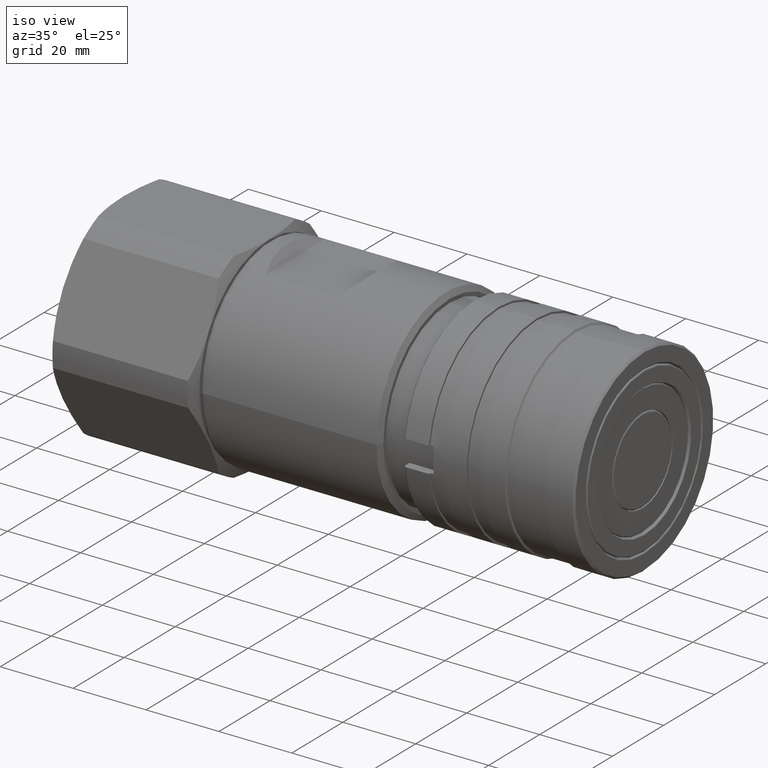
[diagram: clean part render]
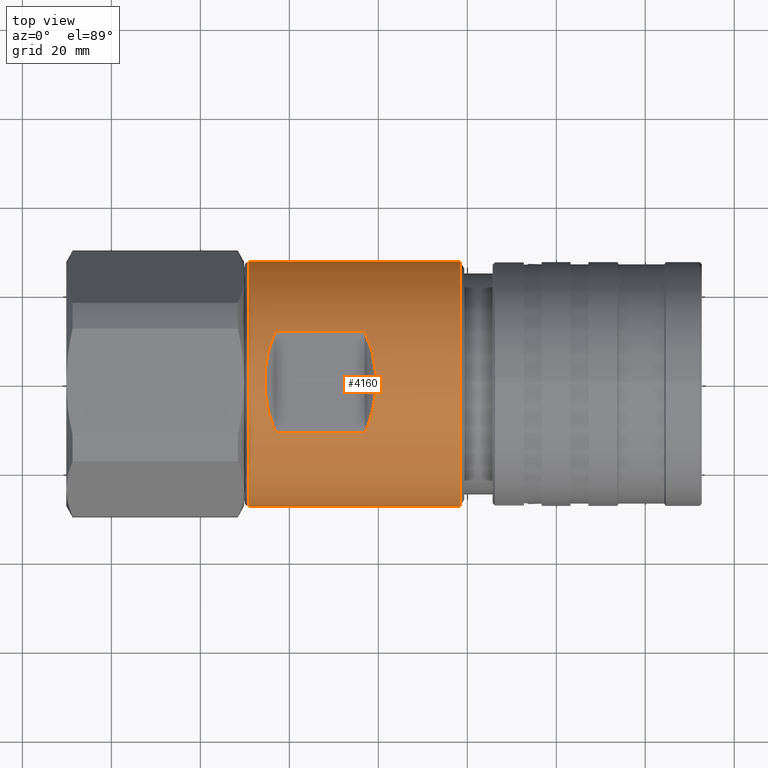
[diagram: tour spotlight — one face highlighted and labeled with its STEP entity id]
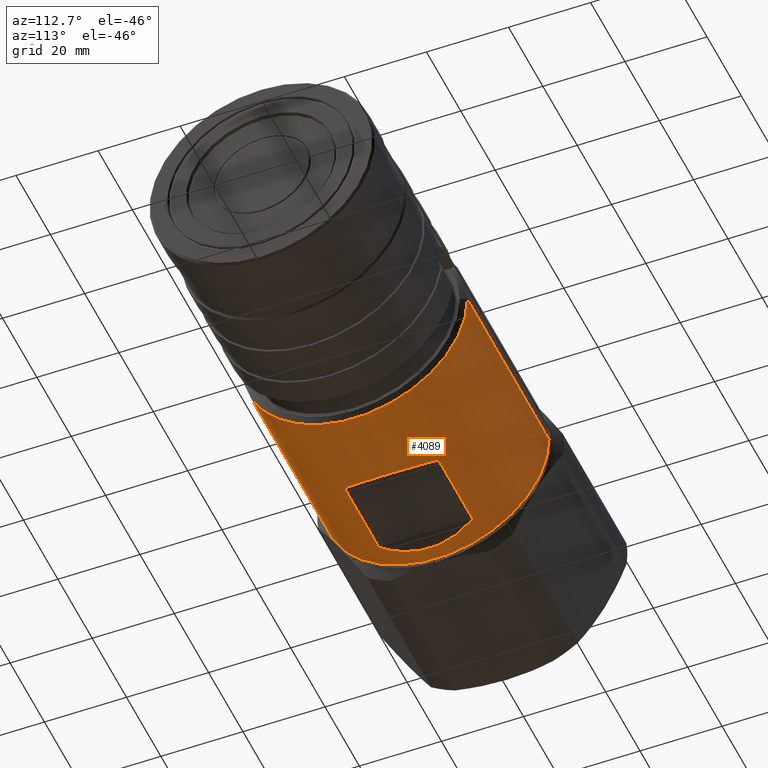
[diagram: tour spotlight — one face highlighted and labeled with its STEP entity id]
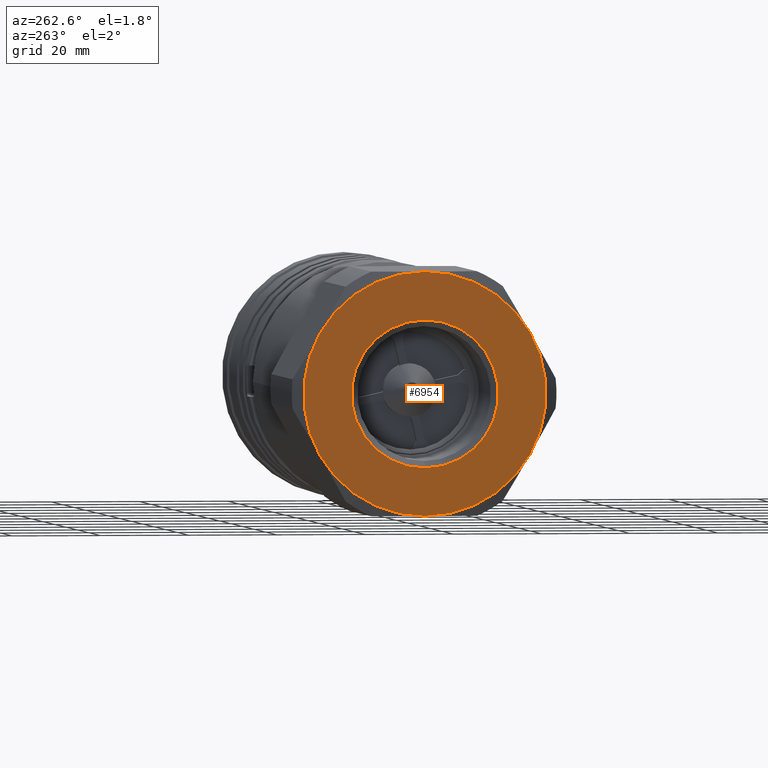
[diagram: tour spotlight — one face highlighted and labeled with its STEP entity id]
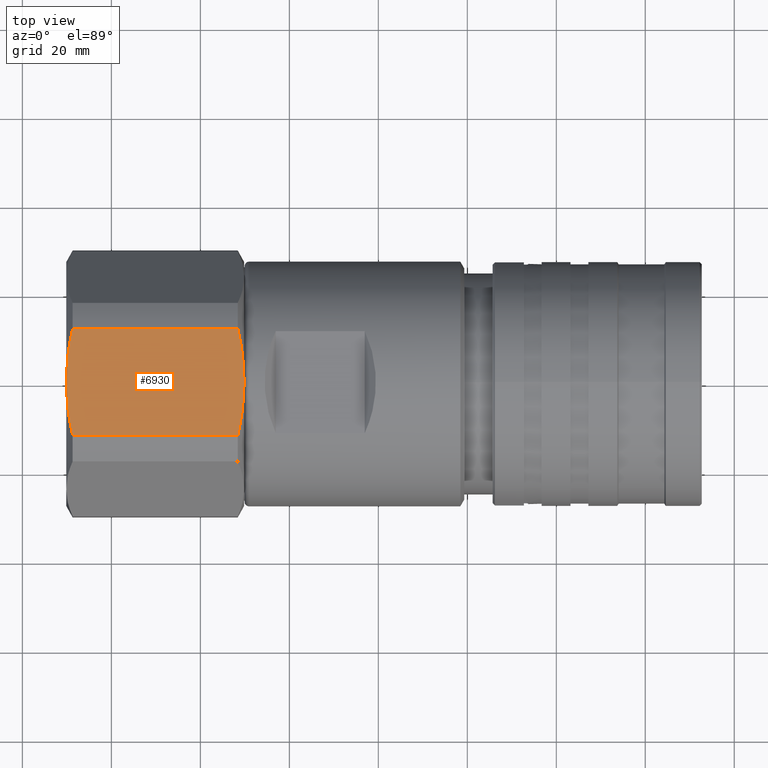
[diagram: tour spotlight — one face highlighted and labeled with its STEP entity id]
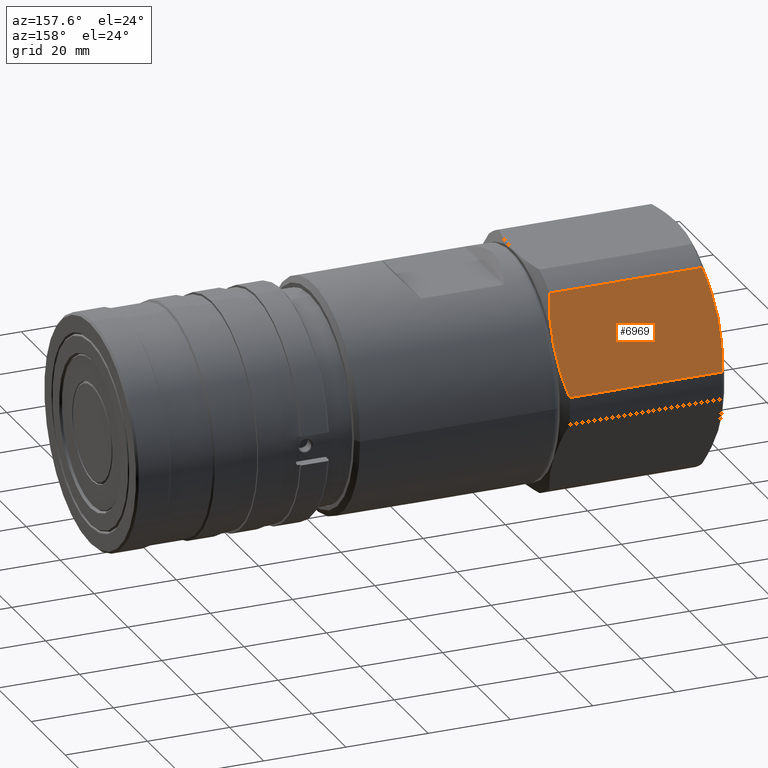
[diagram: tour spotlight — one face highlighted and labeled with its STEP entity id]
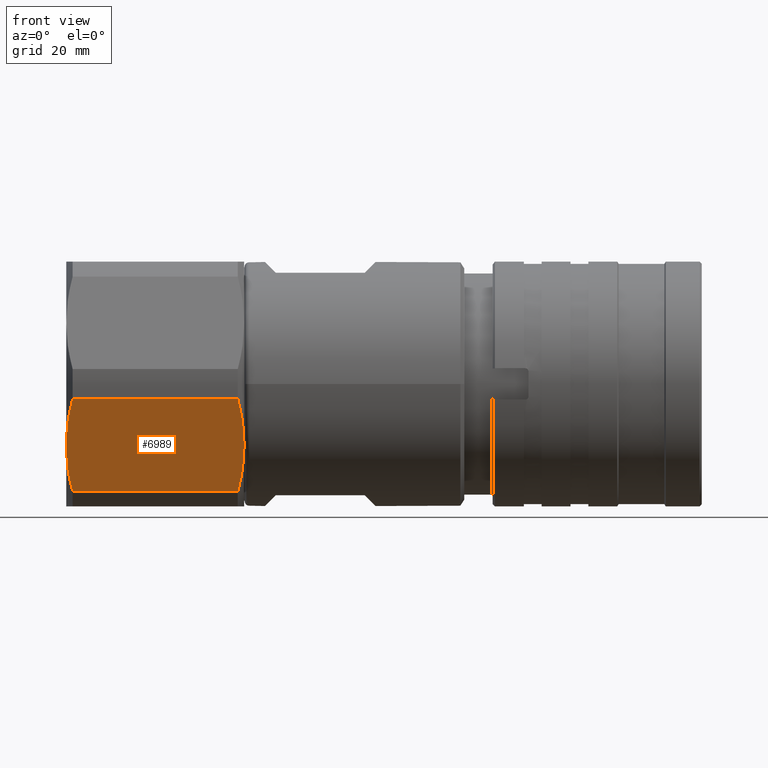
[diagram: tour spotlight — one face highlighted and labeled with its STEP entity id]
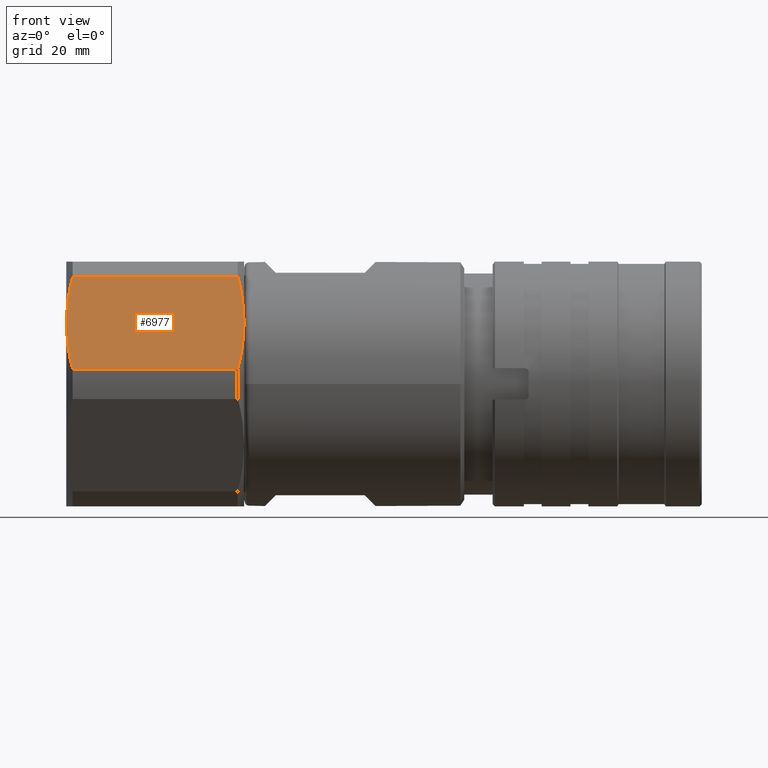
[diagram: tour spotlight — one face highlighted and labeled with its STEP entity id]
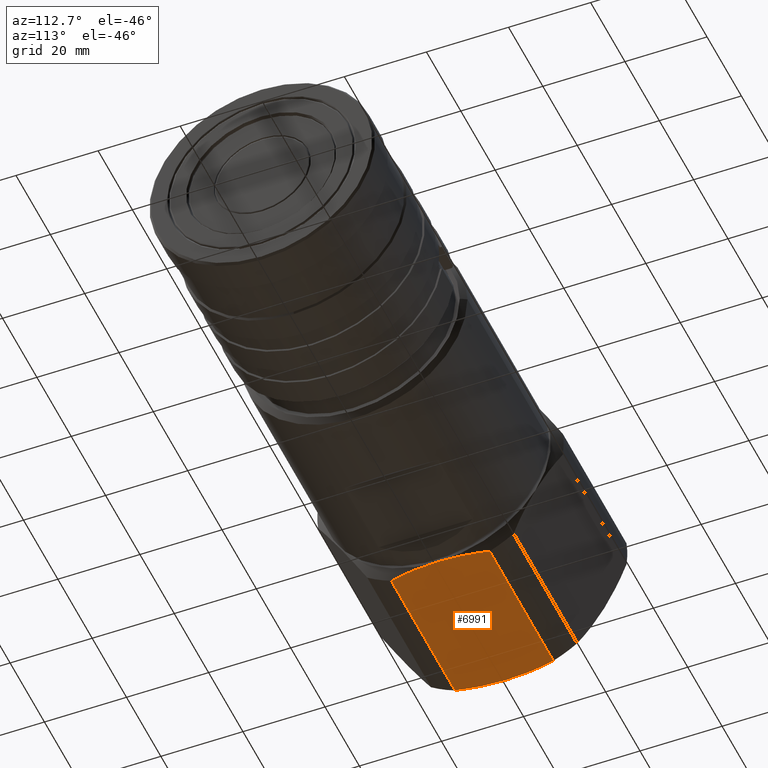
[diagram: tour spotlight — one face highlighted and labeled with its STEP entity id]
A machine part: a face-by-face anatomy tour. The part has 254 B-rep faces; the first image is the clean iso view, then the 8 largest visible faces are spotlighted one at a time (largest first), each with its STEP entity span.

Face 1 — top view, entity #4160. In plain terms, the highlighted cylindrical surface (partial cylindrical patch) has radius 27.5 mm, axis along (-1, 0, 0).
Definition (entity closure, byte-faithful):
#177 = EDGE_CURVE ( 'NONE', #4216, #4384, #185, .T. ) ;
#185 =( BOUNDED_CURVE ( )  B_SPLINE_CURVE ( 3, ( #4337, #4334, #4339, #4340 ),
 .UNSPECIFIED., .F., .T. ) 
 B_SPLINE_CURVE_WITH_KNOTS ( ( 4, 4 ),
 ( 5.853485641028163000, 6.712884973331009400 ),
 .UNSPECIFIED. ) 
 CURVE ( )  GEOMETRIC_REPRESENTATION_ITEM ( )  RATIONAL_B_SPLINE_CURVE ( ( 1.000000000000000000, 0.9393939393939396700, 0.9393939393939396700, 1.000000000000000000 ) ) 
 REPRESENTATION_ITEM ( '' )  );
#418 = EDGE_CURVE ( 'NONE', #4384, #4492, #6021, .T. ) ;
#571 = EDGE_LOOP ( 'NONE', ( #7608, #7194, #7201, #7195 ) ) ;
#817 = EDGE_LOOP ( 'NONE', ( #7471, #7203, #7469, #7601 ) ) ;
#1266 = EDGE_CURVE ( 'NONE', #4535, #4556, #6084, .T. ) ;
#1712 = DIRECTION ( 'NONE',  ( -1.000000000000000000, 3.901668620590964800E-016, 2.470900673739965100E-016 ) ) ;
#1875 = CARTESIAN_POINT ( 'NONE',  ( -43.25767397055399500, 27.49999999999999600, 3.424228487341944800E-014 ) ) ;
#2055 = CARTESIAN_POINT ( 'NONE',  ( -43.25767397055400200, 11.45643923738956000, 25.00000000000000000 ) ) ;
#2075 = DIRECTION ( 'NONE',  ( 1.000000000000000000, -3.901668620590964800E-016, -2.470900673739965100E-016 ) ) ;
#2248 = DIRECTION ( 'NONE',  ( -1.000000000000000000, 3.901668620590964800E-016, 2.470900673739965100E-016 ) ) ;
#2463 = CARTESIAN_POINT ( 'NONE',  ( -43.25767397055400900, -27.50000000000000400, 3.396486316291628800E-015 ) ) ;
#2533 = CARTESIAN_POINT ( 'NONE',  ( 18.43397459621554900, -2.647470538382374900E-014, 5.259881342907169700E-015 ) ) ;
#2550 = DIRECTION ( 'NONE',  ( -1.000000000000000000, 3.901668620590964800E-016, 2.470900673739965100E-016 ) ) ;
#2553 = DIRECTION ( 'NONE',  ( 3.784851220313033800E-016, 1.000000000000000000, 4.996003610813201500E-016 ) ) ;
#2680 = CARTESIAN_POINT ( 'NONE',  ( 18.43397459621556000, 27.49999999999997200, 1.899889127264347300E-014 ) ) ;
#2686 = CARTESIAN_POINT ( 'NONE',  ( -3.050000000000000300, -11.45643923738959900, 25.00000000000000000 ) ) ;
#2717 = CARTESIAN_POINT ( 'NONE',  ( -29.04999999999999000, 27.49999999999999300, 3.073170975480750300E-014 ) ) ;
#2722 = CARTESIAN_POINT ( 'NONE',  ( -23.05000000000000100, -11.45643923738958100, 25.00000000000000000 ) ) ;
#2859 = CARTESIAN_POINT ( 'NONE',  ( -3.050000000000000300, 11.45643923738954100, 25.00000000000000000 ) ) ;
#2863 = CARTESIAN_POINT ( 'NONE',  ( 0.3370967741933971800, 4.065188116493041000, 28.38709677419353000 ) ) ;
#2864 = CARTESIAN_POINT ( 'NONE',  ( 0.3370967741933941200, -4.065188116493091600, 28.38709677419352700 ) ) ;
#2865 = CARTESIAN_POINT ( 'NONE',  ( -3.050000000000000300, -11.45643923738959900, 25.00000000000000000 ) ) ;
#2875 = CARTESIAN_POINT ( 'NONE',  ( -43.25767397055400200, -11.45643923738958100, 25.00000000000000000 ) ) ;
#2876 = DIRECTION ( 'NONE',  ( -1.000000000000000000, 3.901668620590964800E-016, 2.470900673739965100E-016 ) ) ;
#2900 = CARTESIAN_POINT ( 'NONE',  ( -29.05000000000000100, -7.948032017524489300E-015, 1.699269982507119700E-014 ) ) ;
#2910 = DIRECTION ( 'NONE',  ( -1.000000000000000000, 3.901668620590964800E-016, 2.470900673739965100E-016 ) ) ;
#2937 = DIRECTION ( 'NONE',  ( 3.784851220313033800E-016, 1.000000000000000000, 4.996003610813201500E-016 ) ) ;
#3124 = CARTESIAN_POINT ( 'NONE',  ( -3.050000000000000300, 11.45643923738954100, 25.00000000000000000 ) ) ;
#3151 = CARTESIAN_POINT ( 'NONE',  ( 18.43397459621553800, -27.50000000000003200, -5.980498043402359100E-015 ) ) ;
#3152 = CARTESIAN_POINT ( 'NONE',  ( -29.05000000000001100, -27.50000000000000700, -1.140888023203256300E-016 ) ) ;
#3350 = CARTESIAN_POINT ( 'NONE',  ( -23.05000000000000100, 11.45643923738954100, 25.00000000000000000 ) ) ;
#3382 = CARTESIAN_POINT ( 'NONE',  ( -43.25767397055400200, -2.404668447274754900E-015, 2.050327494368315200E-014 ) ) ;
#3717 = DIRECTION ( 'NONE',  ( -1.000000000000000000, 3.901668620590964800E-016, 2.470900673739965100E-016 ) ) ;
#3718 = DIRECTION ( 'NONE',  ( 2.523234146875356000E-016, 1.000000000000000000, 4.996003610813199500E-016 ) ) ;
#3952 =( BOUNDED_CURVE ( )  B_SPLINE_CURVE ( 3, ( #2859, #2863, #2864, #2865 ),
 .UNSPECIFIED., .F., .T. ) 
 B_SPLINE_CURVE_WITH_KNOTS ( ( 4, 4 ),
 ( 2.711892987438370800, 3.571292319741215900 ),
 .UNSPECIFIED. ) 
 CURVE ( )  GEOMETRIC_REPRESENTATION_ITEM ( )  RATIONAL_B_SPLINE_CURVE ( ( 1.000000000000000000, 0.9393939393939400000, 0.9393939393939400000, 1.000000000000000000 ) ) 
 REPRESENTATION_ITEM ( '' )  );
#4046 = EDGE_CURVE ( 'NONE', #4226, #4243, #5623, .T. ) ;
#4160 = ADVANCED_FACE ( 'NONE', ( #5286, #5268 ), #5267, .T. ) ;
#4216 = VERTEX_POINT ( 'NONE', #2722 ) ;
#4226 = VERTEX_POINT ( 'NONE', #2680 ) ;
#4237 = VERTEX_POINT ( 'NONE', #2686 ) ;
#4243 = VERTEX_POINT ( 'NONE', #2717 ) ;
#4334 = CARTESIAN_POINT ( 'NONE',  ( -26.43709677419354200, -4.065188116493096100, 28.38709677419355900 ) ) ;
#4337 = CARTESIAN_POINT ( 'NONE',  ( -23.05000000000000100, -11.45643923738958100, 25.00000000000000000 ) ) ;
#4339 = CARTESIAN_POINT ( 'NONE',  ( -26.43709677419355200, 4.065188116493052600, 28.38709677419356200 ) ) ;
#4340 = CARTESIAN_POINT ( 'NONE',  ( -23.05000000000000100, 11.45643923738954100, 25.00000000000000000 ) ) ;
#4384 = VERTEX_POINT ( 'NONE', #3350 ) ;
#4492 = VERTEX_POINT ( 'NONE', #3124 ) ;
#4535 = VERTEX_POINT ( 'NONE', #3151 ) ;
#4556 = VERTEX_POINT ( 'NONE', #3152 ) ;
#5118 = LINE ( 'NONE', #2875, #5141 ) ;
#5139 = CIRCLE ( 'NONE', #6455, 27.50000000000000000 ) ;
#5141 = VECTOR ( 'NONE', #2876, 1000.000000000000000 ) ;
#5267 = CYLINDRICAL_SURFACE ( 'NONE', #6473, 27.50000000000000000 ) ;
#5268 = FACE_BOUND ( 'NONE', #571, .T. ) ;
#5286 = FACE_OUTER_BOUND ( 'NONE', #817, .T. ) ;
#5580 = VECTOR ( 'NONE', #2248, 1000.000000000000000 ) ;
#5623 = LINE ( 'NONE', #1875, #5580 ) ;
#6020 = VECTOR ( 'NONE', #2075, 1000.000000000000000 ) ;
#6021 = LINE ( 'NONE', #2055, #6020 ) ;
#6040 = CIRCLE ( 'NONE', #6337, 27.50000000000000000 ) ;
#6084 = LINE ( 'NONE', #2463, #6090 ) ;
#6090 = VECTOR ( 'NONE', #1712, 1000.000000000000000 ) ;
#6337 = AXIS2_PLACEMENT_3D ( 'NONE', #2533, #2550, #2553 ) ;
#6455 = AXIS2_PLACEMENT_3D ( 'NONE', #2900, #2910, #2937 ) ;
#6473 = AXIS2_PLACEMENT_3D ( 'NONE', #3382, #3717, #3718 ) ;
#6618 = EDGE_CURVE ( 'NONE', #4492, #4237, #3952, .T. ) ;
#6637 = EDGE_CURVE ( 'NONE', #4237, #4216, #5118, .T. ) ;
#6641 = EDGE_CURVE ( 'NONE', #4556, #4243, #5139, .T. ) ;
#7023 = EDGE_CURVE ( 'NONE', #4535, #4226, #6040, .T. ) ;
#7194 = ORIENTED_EDGE ( 'NONE', *, *, #6618, .T. ) ;
#7195 = ORIENTED_EDGE ( 'NONE', *, *, #177, .T. ) ;
#7201 = ORIENTED_EDGE ( 'NONE', *, *, #6637, .T. ) ;
#7203 = ORIENTED_EDGE ( 'NONE', *, *, #7023, .T. ) ;
#7469 = ORIENTED_EDGE ( 'NONE', *, *, #4046, .T. ) ;
#7471 = ORIENTED_EDGE ( 'NONE', *, *, #1266, .F. ) ;
#7601 = ORIENTED_EDGE ( 'NONE', *, *, #6641, .F. ) ;
#7608 = ORIENTED_EDGE ( 'NONE', *, *, #418, .T. ) ;

Face 2 — auxiliary view, entity #4089. In plain terms, the highlighted cylindrical surface (partial cylindrical patch) has radius 27.5 mm, axis along (-1, 0, 0).
Definition (entity closure, byte-faithful):
#131 = EDGE_CURVE ( 'NONE', #4848, #4459, #5937, .T. ) ;
#186 =( BOUNDED_CURVE ( )  B_SPLINE_CURVE ( 3, ( #2356, #1935, #1920, #2441 ),
 .UNSPECIFIED., .F., .T. ) 
 B_SPLINE_CURVE_WITH_KNOTS ( ( 4, 4 ),
 ( 2.711892987438370400, 3.571292319741215400 ),
 .UNSPECIFIED. ) 
 CURVE ( )  GEOMETRIC_REPRESENTATION_ITEM ( )  RATIONAL_B_SPLINE_CURVE ( ( 1.000000000000000000, 0.9393939393939400000, 0.9393939393939400000, 1.000000000000000000 ) ) 
 REPRESENTATION_ITEM ( '' )  );
#187 =( BOUNDED_CURVE ( )  B_SPLINE_CURVE ( 3, ( #2012, #2016, #2192, #1628 ),
 .UNSPECIFIED., .F., .T. ) 
 B_SPLINE_CURVE_WITH_KNOTS ( ( 4, 4 ),
 ( 5.853485641028163000, 6.712884973331009400 ),
 .UNSPECIFIED. ) 
 CURVE ( )  GEOMETRIC_REPRESENTATION_ITEM ( )  RATIONAL_B_SPLINE_CURVE ( ( 1.000000000000000000, 0.9393939393939396700, 0.9393939393939396700, 1.000000000000000000 ) ) 
 REPRESENTATION_ITEM ( '' )  );
#363 = ORIENTED_EDGE ( 'NONE', *, *, #4016, .T. ) ;
#394 = ORIENTED_EDGE ( 'NONE', *, *, #4040, .T. ) ;
#396 = ORIENTED_EDGE ( 'NONE', *, *, #4071, .T. ) ;
#399 = ORIENTED_EDGE ( 'NONE', *, *, #4044, .T. ) ;
#764 = EDGE_LOOP ( 'NONE', ( #1211, #363, #394, #396 ) ) ;
#786 = EDGE_LOOP ( 'NONE', ( #399, #1177, #866, #999 ) ) ;
#866 = ORIENTED_EDGE ( 'NONE', *, *, #4020, .F. ) ;
#999 = ORIENTED_EDGE ( 'NONE', *, *, #4046, .F. ) ;
#1177 = ORIENTED_EDGE ( 'NONE', *, *, #1266, .T. ) ;
#1211 = ORIENTED_EDGE ( 'NONE', *, *, #131, .T. ) ;
#1266 = EDGE_CURVE ( 'NONE', #4535, #4556, #6084, .T. ) ;
#1346 = DIRECTION ( 'NONE',  ( 3.784851220313033800E-016, 1.000000000000000000, 4.996003610813201500E-016 ) ) ;
#1571 = DIRECTION ( 'NONE',  ( -1.000000000000000000, 3.901668620590964800E-016, 2.470900673739965100E-016 ) ) ;
#1628 = CARTESIAN_POINT ( 'NONE',  ( -23.05000000000000100, -11.45643923738956000, -25.00000000000000000 ) ) ;
#1712 = DIRECTION ( 'NONE',  ( -1.000000000000000000, 3.901668620590964800E-016, 2.470900673739965100E-016 ) ) ;
#1875 = CARTESIAN_POINT ( 'NONE',  ( -43.25767397055399500, 27.49999999999999600, 3.424228487341944800E-014 ) ) ;
#1878 = DIRECTION ( 'NONE',  ( 2.523234146875356000E-016, 1.000000000000000000, 4.996003610813199500E-016 ) ) ;
#1899 = CARTESIAN_POINT ( 'NONE',  ( -43.25767397055400200, -2.404668447274754900E-015, 2.050327494368315200E-014 ) ) ;
#1920 = CARTESIAN_POINT ( 'NONE',  ( 0.3370967741933954500, 4.065188116493047200, -28.38709677419349800 ) ) ;
#1935 = CARTESIAN_POINT ( 'NONE',  ( 0.3370967741933892900, -4.065188116493085400, -28.38709677419349500 ) ) ;
#2008 = CARTESIAN_POINT ( 'NONE',  ( 18.43397459621554900, -2.647470538382374900E-014, 5.259881342907169700E-015 ) ) ;
#2012 = CARTESIAN_POINT ( 'NONE',  ( -23.05000000000000100, 11.45643923738956000, -25.00000000000000000 ) ) ;
#2016 = CARTESIAN_POINT ( 'NONE',  ( -26.43709677419354200, 4.065188116493069400, -28.38709677419350200 ) ) ;
#2044 = CARTESIAN_POINT ( 'NONE',  ( -43.25767397055400200, 11.45643923738956000, -25.00000000000000000 ) ) ;
#2051 = DIRECTION ( 'NONE',  ( -1.000000000000000000, 3.901668620590964800E-016, 2.470900673739965100E-016 ) ) ;
#2192 = CARTESIAN_POINT ( 'NONE',  ( -26.43709677419355200, -4.065188116493076500, -28.38709677419350200 ) ) ;
#2196 = DIRECTION ( 'NONE',  ( -1.000000000000000000, 3.901668620590964800E-016, 2.470900673739965100E-016 ) ) ;
#2248 = DIRECTION ( 'NONE',  ( -1.000000000000000000, 3.901668620590964800E-016, 2.470900673739965100E-016 ) ) ;
#2321 = DIRECTION ( 'NONE',  ( -1.000000000000000000, 3.901668620590964800E-016, 2.470900673739965100E-016 ) ) ;
#2356 = CARTESIAN_POINT ( 'NONE',  ( -3.050000000000000300, -11.45643923738959900, -25.00000000000000000 ) ) ;
#2366 = CARTESIAN_POINT ( 'NONE',  ( -29.05000000000000100, -7.948032017524489300E-015, 1.699269982507119700E-014 ) ) ;
#2398 = DIRECTION ( 'NONE',  ( 3.784851220313033800E-016, 1.000000000000000000, 4.996003610813201500E-016 ) ) ;
#2441 = CARTESIAN_POINT ( 'NONE',  ( -3.050000000000000300, 11.45643923738956000, -25.00000000000000000 ) ) ;
#2463 = CARTESIAN_POINT ( 'NONE',  ( -43.25767397055400900, -27.50000000000000400, 3.396486316291628800E-015 ) ) ;
#2647 = CARTESIAN_POINT ( 'NONE',  ( -3.050000000000000300, 11.45643923738956000, -25.00000000000000000 ) ) ;
#2680 = CARTESIAN_POINT ( 'NONE',  ( 18.43397459621556000, 27.49999999999997200, 1.899889127264347300E-014 ) ) ;
#2717 = CARTESIAN_POINT ( 'NONE',  ( -29.04999999999999000, 27.49999999999999300, 3.073170975480750300E-014 ) ) ;
#3109 = CARTESIAN_POINT ( 'NONE',  ( -23.05000000000000100, -11.45643923738956000, -25.00000000000000000 ) ) ;
#3151 = CARTESIAN_POINT ( 'NONE',  ( 18.43397459621553800, -27.50000000000003200, -5.980498043402359100E-015 ) ) ;
#3152 = CARTESIAN_POINT ( 'NONE',  ( -29.05000000000001100, -27.50000000000000700, -1.140888023203256300E-016 ) ) ;
#3190 = CARTESIAN_POINT ( 'NONE',  ( -23.05000000000000100, 11.45643923738956000, -25.00000000000000000 ) ) ;
#3324 = CARTESIAN_POINT ( 'NONE',  ( -3.050000000000000300, -11.45643923738959900, -25.00000000000000000 ) ) ;
#4016 = EDGE_CURVE ( 'NONE', #4459, #5103, #186, .T. ) ;
#4020 = EDGE_CURVE ( 'NONE', #4243, #4556, #5482, .T. ) ;
#4040 = EDGE_CURVE ( 'NONE', #5103, #4491, #5610, .T. ) ;
#4044 = EDGE_CURVE ( 'NONE', #4226, #4535, #5637, .T. ) ;
#4046 = EDGE_CURVE ( 'NONE', #4226, #4243, #5623, .T. ) ;
#4071 = EDGE_CURVE ( 'NONE', #4491, #4848, #187, .T. ) ;
#4089 = ADVANCED_FACE ( 'NONE', ( #5532, #5511 ), #5495, .T. ) ;
#4226 = VERTEX_POINT ( 'NONE', #2680 ) ;
#4243 = VERTEX_POINT ( 'NONE', #2717 ) ;
#4459 = VERTEX_POINT ( 'NONE', #3324 ) ;
#4491 = VERTEX_POINT ( 'NONE', #3190 ) ;
#4535 = VERTEX_POINT ( 'NONE', #3151 ) ;
#4556 = VERTEX_POINT ( 'NONE', #3152 ) ;
#4594 = DIRECTION ( 'NONE',  ( 1.000000000000000000, -3.901668620590964800E-016, -2.470900673739965100E-016 ) ) ;
#4598 = CARTESIAN_POINT ( 'NONE',  ( -43.25767397055400200, -11.45643923738956000, -25.00000000000000000 ) ) ;
#4848 = VERTEX_POINT ( 'NONE', #3109 ) ;
#5103 = VERTEX_POINT ( 'NONE', #2647 ) ;
#5482 = CIRCLE ( 'NONE', #6260, 27.50000000000000000 ) ;
#5495 = CYLINDRICAL_SURFACE ( 'NONE', #6535, 27.50000000000000000 ) ;
#5511 = FACE_OUTER_BOUND ( 'NONE', #786, .T. ) ;
#5532 = FACE_BOUND ( 'NONE', #764, .T. ) ;
#5568 = VECTOR ( 'NONE', #2051, 1000.000000000000000 ) ;
#5580 = VECTOR ( 'NONE', #2248, 1000.000000000000000 ) ;
#5610 = LINE ( 'NONE', #2044, #5568 ) ;
#5623 = LINE ( 'NONE', #1875, #5580 ) ;
#5637 = CIRCLE ( 'NONE', #6269, 27.50000000000000000 ) ;
#5936 = VECTOR ( 'NONE', #4594, 1000.000000000000000 ) ;
#5937 = LINE ( 'NONE', #4598, #5936 ) ;
#6084 = LINE ( 'NONE', #2463, #6090 ) ;
#6090 = VECTOR ( 'NONE', #1712, 1000.000000000000000 ) ;
#6260 = AXIS2_PLACEMENT_3D ( 'NONE', #2366, #2321, #2398 ) ;
#6269 = AXIS2_PLACEMENT_3D ( 'NONE', #2008, #1571, #1346 ) ;
#6535 = AXIS2_PLACEMENT_3D ( 'NONE', #1899, #2196, #1878 ) ;

Face 3 — auxiliary view, entity #6954. In plain terms, the highlighted planar face has unit normal (-1, 0, 0).
Definition (entity closure, byte-faithful):
#98 = EDGE_CURVE ( 'NONE', #4436, #4563, #5868, .T. ) ;
#200 = EDGE_CURVE ( 'NONE', #4291, #4213, #6179, .T. ) ;
#427 = EDGE_LOOP ( 'NONE', ( #7393, #7394, #7395, #7563, #7430, #7408 ) ) ;
#577 = EDGE_LOOP ( 'NONE', ( #7392, #7389 ) ) ;
#916 = EDGE_CURVE ( 'NONE', #4217, #4291, #6007, .T. ) ;
#935 = EDGE_CURVE ( 'NONE', #4214, #4323, #6001, .T. ) ;
#962 = EDGE_CURVE ( 'NONE', #4213, #4214, #6068, .T. ) ;
#1361 = CARTESIAN_POINT ( 'NONE',  ( -70.15000000000000600, -3.089352188488119700E-015, -1.919073878579844800E-015 ) ) ;
#1439 = CARTESIAN_POINT ( 'NONE',  ( -70.15000000000000600, -3.089352188488119700E-015, -1.919073878579844800E-015 ) ) ;
#1514 = CARTESIAN_POINT ( 'NONE',  ( -70.15000000000000600, -3.089352188488119700E-015, -1.919073878579844800E-015 ) ) ;
#1567 = DIRECTION ( 'NONE',  ( 1.000000000000000000, 0.0000000000000000000, 0.0000000000000000000 ) ) ;
#1686 = DIRECTION ( 'NONE',  ( 0.0000000000000000000, 0.0000000000000000000, -1.000000000000000000 ) ) ;
#1726 = CARTESIAN_POINT ( 'NONE',  ( -70.15000000000000600, -3.089352188488119700E-015, -1.919073878579844800E-015 ) ) ;
#1797 = DIRECTION ( 'NONE',  ( 1.000000000000000000, 0.0000000000000000000, 0.0000000000000000000 ) ) ;
#1926 = DIRECTION ( 'NONE',  ( 0.0000000000000000000, 0.0000000000000000000, -1.000000000000000000 ) ) ;
#1951 = DIRECTION ( 'NONE',  ( 1.000000000000000000, 0.0000000000000000000, 0.0000000000000000000 ) ) ;
#1959 = DIRECTION ( 'NONE',  ( 1.000000000000000000, 0.0000000000000000000, 0.0000000000000000000 ) ) ;
#2007 = CARTESIAN_POINT ( 'NONE',  ( -70.15000000000000600, -3.089352188488119700E-015, -1.919073878579844800E-015 ) ) ;
#2017 = DIRECTION ( 'NONE',  ( 0.0000000000000000000, 0.0000000000000000000, -1.000000000000000000 ) ) ;
#2045 = DIRECTION ( 'NONE',  ( 0.0000000000000000000, 0.0000000000000000000, -1.000000000000000000 ) ) ;
#2093 = DIRECTION ( 'NONE',  ( 1.000000000000000000, 0.0000000000000000000, 0.0000000000000000000 ) ) ;
#2118 = DIRECTION ( 'NONE',  ( 0.0000000000000000000, 0.0000000000000000000, -1.000000000000000000 ) ) ;
#2255 = DIRECTION ( 'NONE',  ( 1.000000000000000000, 0.0000000000000000000, 0.0000000000000000000 ) ) ;
#2304 = DIRECTION ( 'NONE',  ( 0.0000000000000000000, 0.0000000000000000000, -1.000000000000000000 ) ) ;
#2358 = CARTESIAN_POINT ( 'NONE',  ( -70.15000000000000600, -3.089352188488119700E-015, -1.919073878579844800E-015 ) ) ;
#2406 = DIRECTION ( 'NONE',  ( 0.0000000000000000000, 0.0000000000000000000, -1.000000000000000000 ) ) ;
#2423 = CARTESIAN_POINT ( 'NONE',  ( -70.15000000000000600, -3.089352188488119700E-015, -1.919073878579844800E-015 ) ) ;
#2425 = DIRECTION ( 'NONE',  ( 1.000000000000000000, 0.0000000000000000000, 0.0000000000000000000 ) ) ;
#2707 = CARTESIAN_POINT ( 'NONE',  ( -70.15000000000000600, -6.558799140441739400E-015, 27.50000000000000000 ) ) ;
#2765 = CARTESIAN_POINT ( 'NONE',  ( -70.15000000000000600, -3.089352188488119700E-015, -27.50000000000000000 ) ) ;
#3135 = CARTESIAN_POINT ( 'NONE',  ( -70.15000000000000600, -3.089352188488119700E-015, 16.64999999999999900 ) ) ;
#3268 = CARTESIAN_POINT ( 'NONE',  ( -70.15000000000000600, 27.50000000000000000, -1.919073878579844800E-015 ) ) ;
#3269 = PLANE ( 'NONE',  #6304 ) ;
#3274 = DIRECTION ( 'NONE',  ( 0.0000000000000000000, 0.0000000000000000000, 1.000000000000000000 ) ) ;
#3275 = DIRECTION ( 'NONE',  ( -1.000000000000000000, 0.0000000000000000000, 0.0000000000000000000 ) ) ;
#3407 = CARTESIAN_POINT ( 'NONE',  ( -70.15000000000000600, -1.050315267907776100E-015, -16.65000000000000600 ) ) ;
#3804 = CARTESIAN_POINT ( 'NONE',  ( -70.15000000000000600, 23.81569860407205400, -13.75000000000000000 ) ) ;
#3807 = CARTESIAN_POINT ( 'NONE',  ( -70.15000000000000600, 23.81569860407205400, 13.75000000000000000 ) ) ;
#3825 = CARTESIAN_POINT ( 'NONE',  ( -70.15000000000000600, -23.81569860407205400, 13.75000000000000000 ) ) ;
#3898 = CARTESIAN_POINT ( 'NONE',  ( -70.15000000000000600, -23.81569860407205400, -13.75000000000000000 ) ) ;
#3974 = EDGE_CURVE ( 'NONE', #4220, #4217, #5371, .T. ) ;
#3975 = EDGE_CURVE ( 'NONE', #4323, #4220, #5372, .T. ) ;
#3999 = EDGE_CURVE ( 'NONE', #4563, #4436, #5455, .T. ) ;
#4213 = VERTEX_POINT ( 'NONE', #3898 ) ;
#4214 = VERTEX_POINT ( 'NONE', #2765 ) ;
#4217 = VERTEX_POINT ( 'NONE', #2707 ) ;
#4220 = VERTEX_POINT ( 'NONE', #3807 ) ;
#4291 = VERTEX_POINT ( 'NONE', #3825 ) ;
#4323 = VERTEX_POINT ( 'NONE', #3804 ) ;
#4436 = VERTEX_POINT ( 'NONE', #3407 ) ;
#4563 = VERTEX_POINT ( 'NONE', #3135 ) ;
#4787 = CARTESIAN_POINT ( 'NONE',  ( -70.15000000000000600, -3.089352188488119700E-015, -1.919073878579844800E-015 ) ) ;
#4799 = DIRECTION ( 'NONE',  ( 1.000000000000000000, 0.0000000000000000000, 0.0000000000000000000 ) ) ;
#4801 = DIRECTION ( 'NONE',  ( 0.0000000000000000000, 0.0000000000000000000, -1.000000000000000000 ) ) ;
#5316 = FACE_OUTER_BOUND ( 'NONE', #427, .T. ) ;
#5317 = FACE_BOUND ( 'NONE', #577, .T. ) ;
#5371 = CIRCLE ( 'NONE', #6241, 27.50000000000000000 ) ;
#5372 = CIRCLE ( 'NONE', #6296, 27.50000000000000000 ) ;
#5455 = CIRCLE ( 'NONE', #6251, 16.65000000000000200 ) ;
#5868 = CIRCLE ( 'NONE', #6650, 16.65000000000000200 ) ;
#6001 = CIRCLE ( 'NONE', #6705, 27.50000000000000000 ) ;
#6007 = CIRCLE ( 'NONE', #6699, 27.50000000000000000 ) ;
#6068 = CIRCLE ( 'NONE', #6709, 27.50000000000000000 ) ;
#6179 = CIRCLE ( 'NONE', #6680, 27.50000000000000000 ) ;
#6241 = AXIS2_PLACEMENT_3D ( 'NONE', #2358, #2425, #1926 ) ;
#6251 = AXIS2_PLACEMENT_3D ( 'NONE', #1439, #1797, #2406 ) ;
#6296 = AXIS2_PLACEMENT_3D ( 'NONE', #2423, #2255, #2304 ) ;
#6304 = AXIS2_PLACEMENT_3D ( 'NONE', #3268, #3275, #3274 ) ;
#6650 = AXIS2_PLACEMENT_3D ( 'NONE', #4787, #4799, #4801 ) ;
#6680 = AXIS2_PLACEMENT_3D ( 'NONE', #1514, #1567, #2118 ) ;
#6699 = AXIS2_PLACEMENT_3D ( 'NONE', #1726, #2093, #2045 ) ;
#6705 = AXIS2_PLACEMENT_3D ( 'NONE', #2007, #1951, #1686 ) ;
#6709 = AXIS2_PLACEMENT_3D ( 'NONE', #1361, #1959, #2017 ) ;
#6954 = ADVANCED_FACE ( 'NONE', ( #5317, #5316 ), #3269, .T. ) ;
#7389 = ORIENTED_EDGE ( 'NONE', *, *, #98, .T. ) ;
#7392 = ORIENTED_EDGE ( 'NONE', *, *, #3999, .T. ) ;
#7393 = ORIENTED_EDGE ( 'NONE', *, *, #935, .F. ) ;
#7394 = ORIENTED_EDGE ( 'NONE', *, *, #962, .F. ) ;
#7395 = ORIENTED_EDGE ( 'NONE', *, *, #200, .F. ) ;
#7408 = ORIENTED_EDGE ( 'NONE', *, *, #3975, .F. ) ;
#7430 = ORIENTED_EDGE ( 'NONE', *, *, #3974, .F. ) ;
#7563 = ORIENTED_EDGE ( 'NONE', *, *, #916, .F. ) ;

Face 4 — top view, entity #6930. In plain terms, the highlighted planar face has unit normal (0, -0, 1).
Definition (entity closure, byte-faithful):
#175 = EDGE_CURVE ( 'NONE', #4313, #4293, #6833, .T. ) ;
#320 = EDGE_LOOP ( 'NONE', ( #7434, #7435, #7352, #7351, #7350, #7354 ) ) ;
#956 = EDGE_CURVE ( 'NONE', #4288, #4296, #6065, .T. ) ;
#1299 = CARTESIAN_POINT ( 'NONE',  ( -31.14285214039661700, 10.03705905531802000, 27.50000000000001100 ) ) ;
#1612 = CARTESIAN_POINT ( 'NONE',  ( -30.77925035145663600, 8.060775409538466700, 27.50000000000000700 ) ) ;
#1614 = CARTESIAN_POINT ( 'NONE',  ( -30.30948998372348100, 4.034665128835043500, 27.49999999999999600 ) ) ;
#1618 = CARTESIAN_POINT ( 'NONE',  ( -30.18195029474780400, 2.013823932301049200, 27.50000000000000000 ) ) ;
#1629 = CARTESIAN_POINT ( 'NONE',  ( -30.14999999999999100, 1.005739222760017000, 27.49999999999999600 ) ) ;
#1752 = CARTESIAN_POINT ( 'NONE',  ( -30.40550149104581800, 5.049420796555329700, 27.50000000000000000 ) ) ;
#2090 = CARTESIAN_POINT ( 'NONE',  ( -30.14999999999999900, 11.98957880828180000, 27.50000000000000000 ) ) ;
#2242 = DIRECTION ( 'NONE',  ( 1.000000000000000000, 0.0000000000000000000, 0.0000000000000000000 ) ) ;
#2380 = CARTESIAN_POINT ( 'NONE',  ( -30.14999999999999900, -6.558799140441739400E-015, 27.50000000000000000 ) ) ;
#2449 = CARTESIAN_POINT ( 'NONE',  ( -31.59337567297405200, 11.98957880828180000, 27.50000000000000000 ) ) ;
#2707 = CARTESIAN_POINT ( 'NONE',  ( -70.15000000000000600, -6.558799140441739400E-015, 27.50000000000000000 ) ) ;
#3084 = CARTESIAN_POINT ( 'NONE',  ( -68.70662432702600600, -11.98957880828180000, 27.50000000000000000 ) ) ;
#3250 = CARTESIAN_POINT ( 'NONE',  ( -31.59337567297405200, 11.98957880828180000, 27.50000000000000000 ) ) ;
#3452 = PLANE ( 'NONE',  #6446 ) ;
#3453 = CARTESIAN_POINT ( 'NONE',  ( -70.15000000000000600, 15.87713240271470000, 27.50000000000000000 ) ) ;
#3454 = DIRECTION ( 'NONE',  ( 0.0000000000000000000, -1.092592435445207900E-016, 1.000000000000000000 ) ) ;
#3455 = DIRECTION ( 'NONE',  ( 0.0000000000000000000, -1.000000000000000000, -1.092592435445207900E-016 ) ) ;
#3515 = CARTESIAN_POINT ( 'NONE',  ( -30.14999999999999900, -11.98957880828180000, 27.50000000000000000 ) ) ;
#3594 = CARTESIAN_POINT ( 'NONE',  ( -70.15000000000002000, -2.015944554609955500, 27.49999999999999300 ) ) ;
#3600 = CARTESIAN_POINT ( 'NONE',  ( -70.15000000000000600, -6.558799140441739400E-015, 27.50000000000000000 ) ) ;
#3626 = CARTESIAN_POINT ( 'NONE',  ( -69.52732842091911900, -8.018067592945723000, 27.49999999999999600 ) ) ;
#3627 = CARTESIAN_POINT ( 'NONE',  ( -70.02066657022322700, -4.022394678815485800, 27.50000000000000000 ) ) ;
#3628 = CARTESIAN_POINT ( 'NONE',  ( -68.70662432702600600, -11.98957880828180000, 27.50000000000000000 ) ) ;
#3629 = CARTESIAN_POINT ( 'NONE',  ( -69.16353963185442000, -10.00935781293192200, 27.49999999999999600 ) ) ;
#3818 = CARTESIAN_POINT ( 'NONE',  ( -68.70662432702600600, 11.98957880828180000, 27.50000000000000000 ) ) ;
#3822 = DIRECTION ( 'NONE',  ( -1.000000000000000000, -0.0000000000000000000, -0.0000000000000000000 ) ) ;
#3916 = CARTESIAN_POINT ( 'NONE',  ( -69.89449850895418600, 5.049420796555306600, 27.49999999999999600 ) ) ;
#3926 = CARTESIAN_POINT ( 'NONE',  ( -69.52074964854335800, 8.060775409538447200, 27.50000000000000000 ) ) ;
#3927 = CARTESIAN_POINT ( 'NONE',  ( -69.15714785960341300, 10.03705905531800400, 27.50000000000001100 ) ) ;
#3928 = CARTESIAN_POINT ( 'NONE',  ( -68.70662432702600600, 11.98957880828180000, 27.50000000000000000 ) ) ;
#3930 = CARTESIAN_POINT ( 'NONE',  ( -69.99051001627651700, 4.034665128835037300, 27.50000000000000400 ) ) ;
#3931 = CARTESIAN_POINT ( 'NONE',  ( -30.14999999999999900, -6.558799140441739400E-015, 27.50000000000000000 ) ) ;
#3932 = CARTESIAN_POINT ( 'NONE',  ( -70.15000000000000600, -6.558799140441739400E-015, 27.50000000000000000 ) ) ;
#3933 = CARTESIAN_POINT ( 'NONE',  ( -70.15000000000002000, 1.005739222760012800, 27.49999999999999600 ) ) ;
#3935 = CARTESIAN_POINT ( 'NONE',  ( -70.11804970525220400, 2.013823932301041200, 27.50000000000000000 ) ) ;
#3943 = CARTESIAN_POINT ( 'NONE',  ( -31.59337567297405200, -11.98957880828180000, 27.50000000000000000 ) ) ;
#3997 = EDGE_CURVE ( 'NONE', #4293, #4296, #6861, .T. ) ;
#4202 = VERTEX_POINT ( 'NONE', #3084 ) ;
#4217 = VERTEX_POINT ( 'NONE', #2707 ) ;
#4288 = VERTEX_POINT ( 'NONE', #3818 ) ;
#4293 = VERTEX_POINT ( 'NONE', #3931 ) ;
#4296 = VERTEX_POINT ( 'NONE', #3250 ) ;
#4313 = VERTEX_POINT ( 'NONE', #3943 ) ;
#4385 = CARTESIAN_POINT ( 'NONE',  ( -31.59337567297405200, -11.98957880828180000, 27.50000000000000000 ) ) ;
#4387 = CARTESIAN_POINT ( 'NONE',  ( -31.13646036814559200, -10.00935781293194400, 27.50000000000000400 ) ) ;
#4390 = CARTESIAN_POINT ( 'NONE',  ( -30.27933342977678400, -4.022394678815484100, 27.49999999999999600 ) ) ;
#4395 = CARTESIAN_POINT ( 'NONE',  ( -30.14999999999999100, -2.015944554609952400, 27.49999999999999300 ) ) ;
#4479 = CARTESIAN_POINT ( 'NONE',  ( -30.14999999999999900, -6.558799140441739400E-015, 27.50000000000000000 ) ) ;
#4480 = CARTESIAN_POINT ( 'NONE',  ( -30.77267157908092100, -8.018067592945726600, 27.50000000000000000 ) ) ;
#5156 = VECTOR ( 'NONE', #3822, 1000.000000000000000 ) ;
#5157 = LINE ( 'NONE', #3515, #5156 ) ;
#5873 = FACE_OUTER_BOUND ( 'NONE', #320, .T. ) ;
#6064 = VECTOR ( 'NONE', #2242, 1000.000000000000000 ) ;
#6065 = LINE ( 'NONE', #2090, #6064 ) ;
#6446 = AXIS2_PLACEMENT_3D ( 'NONE', #3453, #3454, #3455 ) ;
#6769 = EDGE_CURVE ( 'NONE', #4313, #4202, #5157, .T. ) ;
#6775 = EDGE_CURVE ( 'NONE', #4217, #4202, #6814, .T. ) ;
#6796 = EDGE_CURVE ( 'NONE', #4288, #4217, #6816, .T. ) ;
#6814 = B_SPLINE_CURVE_WITH_KNOTS ( 'NONE', 3,
 ( #3600, #3594, #3627, #3626, #3629, #3628 ),
 .UNSPECIFIED., .F., .F.,
 ( 4, 2, 4 ),
 ( 0.02783637660535818300, 0.03385634780504968900, 0.03987631900474120100 ),
 .UNSPECIFIED. ) ;
#6816 = B_SPLINE_CURVE_WITH_KNOTS ( 'NONE', 3,
 ( #3928, #3927, #3926, #3916, #3930, #3935, #3933, #3932 ),
 .UNSPECIFIED., .F., .F.,
 ( 4, 2, 2, 4 ),
 ( 0.01582310740790860200, 0.02182974200663339100, 0.02483305930599578900, 0.02783637660535818300 ),
 .UNSPECIFIED. ) ;
#6833 = B_SPLINE_CURVE_WITH_KNOTS ( 'NONE', 3,
 ( #4385, #4387, #4480, #4390, #4395, #4479 ),
 .UNSPECIFIED., .F., .F.,
 ( 4, 2, 4 ),
 ( 0.03216206402781995900, 0.03819680560810977100, 0.04423154718839958400 ),
 .UNSPECIFIED. ) ;
#6861 = B_SPLINE_CURVE_WITH_KNOTS ( 'NONE', 3,
 ( #2380, #1629, #1618, #1614, #1752, #1612, #1299, #2449 ),
 .UNSPECIFIED., .F., .F.,
 ( 4, 2, 2, 4 ),
 ( 0.04423154718839958400, 0.04724223331696356800, 0.05025291944552755900, 0.05627429170265553500 ),
 .UNSPECIFIED. ) ;
#6930 = ADVANCED_FACE ( 'NONE', ( #5873 ), #3452, .T. ) ;
#7350 = ORIENTED_EDGE ( 'NONE', *, *, #956, .F. ) ;
#7351 = ORIENTED_EDGE ( 'NONE', *, *, #3997, .T. ) ;
#7352 = ORIENTED_EDGE ( 'NONE', *, *, #175, .T. ) ;
#7354 = ORIENTED_EDGE ( 'NONE', *, *, #6796, .T. ) ;
#7434 = ORIENTED_EDGE ( 'NONE', *, *, #6775, .T. ) ;
#7435 = ORIENTED_EDGE ( 'NONE', *, *, #6769, .F. ) ;

Face 5 — auxiliary view, entity #6969. In plain terms, the highlighted planar face has unit normal (0, 0.866, 0.5).
Definition (entity closure, byte-faithful):
#210 = EDGE_CURVE ( 'NONE', #4319, #4298, #6199, .T. ) ;
#373 = EDGE_CURVE ( 'NONE', #4295, #4338, #6835, .T. ) ;
#402 = EDGE_CURVE ( 'NONE', #4319, #4220, #6830, .T. ) ;
#829 = EDGE_LOOP ( 'NONE', ( #7356, #7359, #7571, #7570, #7569, #7566 ) ) ;
#1250 = EDGE_CURVE ( 'NONE', #4220, #4289, #6851, .T. ) ;
#1542 = CARTESIAN_POINT ( 'NONE',  ( -30.14999999999999900, 29.81048800821295000, 3.366720171352394900 ) ) ;
#1622 = CARTESIAN_POINT ( 'NONE',  ( -30.77288798635062200, 19.80600537970582000, 20.69499238736697700 ) ) ;
#1716 = CARTESIAN_POINT ( 'NONE',  ( -68.70662432702600600, 29.81048800821295000, 3.366720171352394900 ) ) ;
#1730 = CARTESIAN_POINT ( 'NONE',  ( -69.52711201364940100, 27.82539182843828500, 6.805007612633021500 ) ) ;
#1767 = CARTESIAN_POINT ( 'NONE',  ( -31.13617620923172100, 18.81163545444471900, 22.41729161943766300 ) ) ;
#1774 = CARTESIAN_POINT ( 'NONE',  ( -69.16382379076827600, 28.81976175369937100, 5.082708380562339200 ) ) ;
#1776 = DIRECTION ( 'NONE',  ( 1.000000000000000000, 0.0000000000000000000, 0.0000000000000000000 ) ) ;
#1871 = CARTESIAN_POINT ( 'NONE',  ( -30.14999999999999900, 23.81569860407205400, 13.75000000000000000 ) ) ;
#1903 = CARTESIAN_POINT ( 'NONE',  ( -70.15000000000000600, 24.82416378202587700, 12.00328707411997600 ) ) ;
#1976 = CARTESIAN_POINT ( 'NONE',  ( -70.02054471300566300, 25.82760621256409900, 10.26527380195736300 ) ) ;
#1980 = CARTESIAN_POINT ( 'NONE',  ( -70.11834102930139100, 22.81331390309362600, 15.48618123082435700 ) ) ;
#1985 = CARTESIAN_POINT ( 'NONE',  ( -69.89688806841168400, 21.30259482992421400, 18.10282342151715100 ) ) ;
#1986 = CARTESIAN_POINT ( 'NONE',  ( -69.99190806526091500, 21.80725205735598500, 17.22873146319847800 ) ) ;
#1988 = CARTESIAN_POINT ( 'NONE',  ( -70.15000000000000600, 23.31512042321990600, 14.61702684239632600 ) ) ;
#1989 = CARTESIAN_POINT ( 'NONE',  ( -68.70662432702600600, 17.82090919993115100, 24.13327982864760200 ) ) ;
#1990 = CARTESIAN_POINT ( 'NONE',  ( -69.52517323977983200, 19.79924399497049200, 20.70670344925807900 ) ) ;
#1994 = CARTESIAN_POINT ( 'NONE',  ( -69.16140497674275900, 18.80639401662589100, 22.42637005604459000 ) ) ;
#1999 = CARTESIAN_POINT ( 'NONE',  ( -70.15000000000000600, 23.81569860407205400, 13.75000000000000000 ) ) ;
#2079 = CARTESIAN_POINT ( 'NONE',  ( -70.15000000000000600, 23.81569860407205400, 13.75000000000000000 ) ) ;
#2146 = CARTESIAN_POINT ( 'NONE',  ( -31.59337567297410100, 17.82090919993115100, 24.13327982864760200 ) ) ;
#2204 = CARTESIAN_POINT ( 'NONE',  ( -30.27945528699431000, 21.80379099557998800, 17.23472619804261900 ) ) ;
#2209 = CARTESIAN_POINT ( 'NONE',  ( -30.14999999999998100, 22.80723342611822300, 15.49671292588002000 ) ) ;
#2753 = CARTESIAN_POINT ( 'NONE',  ( -30.14999999999999900, 23.81569860407205400, 13.75000000000000000 ) ) ;
#2827 = DIRECTION ( 'NONE',  ( -1.000000000000000000, -0.0000000000000000000, -0.0000000000000000000 ) ) ;
#2831 = CARTESIAN_POINT ( 'NONE',  ( -30.14999999999999900, 17.82090919993115100, 24.13327982864760200 ) ) ;
#3075 = CARTESIAN_POINT ( 'NONE',  ( -31.59337567297405200, 29.81048800821295000, 3.366720171352394900 ) ) ;
#3347 = DIRECTION ( 'NONE',  ( 0.0000000000000000000, -0.5000000000000003300, 0.8660254037844384900 ) ) ;
#3351 = DIRECTION ( 'NONE',  ( 0.0000000000000000000, 0.8660254037844384900, 0.5000000000000003300 ) ) ;
#3352 = CARTESIAN_POINT ( 'NONE',  ( -70.15000000000000600, 31.75426480542940100, 1.022399045325780100E-014 ) ) ;
#3353 = PLANE ( 'NONE',  #6312 ) ;
#3513 = CARTESIAN_POINT ( 'NONE',  ( -30.77482676022019700, 27.83215321317360500, 6.793296550741907900 ) ) ;
#3516 = CARTESIAN_POINT ( 'NONE',  ( -31.59337567297405200, 29.81048800821295000, 3.366720171352394900 ) ) ;
#3524 = CARTESIAN_POINT ( 'NONE',  ( -31.13859502325726300, 28.82500319151821700, 5.073629943955395100 ) ) ;
#3678 = CARTESIAN_POINT ( 'NONE',  ( -30.30809193473906000, 25.82414515078809800, 10.27126853680152700 ) ) ;
#3682 = CARTESIAN_POINT ( 'NONE',  ( -30.18165897069860300, 24.81808330505046800, 12.01381876917564100 ) ) ;
#3683 = CARTESIAN_POINT ( 'NONE',  ( -30.14999999999997400, 24.31627678492419500, 12.88297315760366700 ) ) ;
#3684 = CARTESIAN_POINT ( 'NONE',  ( -30.14999999999999900, 23.81569860407205400, 13.75000000000000000 ) ) ;
#3685 = CARTESIAN_POINT ( 'NONE',  ( -30.40311193158835900, 26.32880237821988700, 9.397176578482838500 ) ) ;
#3773 = CARTESIAN_POINT ( 'NONE',  ( -68.70662432702600600, 29.81048800821295000, 3.366720171352394900 ) ) ;
#3807 = CARTESIAN_POINT ( 'NONE',  ( -70.15000000000000600, 23.81569860407205400, 13.75000000000000000 ) ) ;
#3817 = CARTESIAN_POINT ( 'NONE',  ( -68.70662432702600600, 17.82090919993115100, 24.13327982864760200 ) ) ;
#3820 = CARTESIAN_POINT ( 'NONE',  ( -31.59337567297410100, 17.82090919993115100, 24.13327982864760200 ) ) ;
#4220 = VERTEX_POINT ( 'NONE', #3807 ) ;
#4289 = VERTEX_POINT ( 'NONE', #3817 ) ;
#4295 = VERTEX_POINT ( 'NONE', #3820 ) ;
#4298 = VERTEX_POINT ( 'NONE', #3075 ) ;
#4319 = VERTEX_POINT ( 'NONE', #3773 ) ;
#4338 = VERTEX_POINT ( 'NONE', #2753 ) ;
#5235 = LINE ( 'NONE', #2831, #5237 ) ;
#5237 = VECTOR ( 'NONE', #2827, 1000.000000000000000 ) ;
#5757 = FACE_OUTER_BOUND ( 'NONE', #829, .T. ) ;
#6198 = VECTOR ( 'NONE', #1776, 1000.000000000000000 ) ;
#6199 = LINE ( 'NONE', #1542, #6198 ) ;
#6312 = AXIS2_PLACEMENT_3D ( 'NONE', #3352, #3351, #3347 ) ;
#6600 = EDGE_CURVE ( 'NONE', #4295, #4289, #5235, .T. ) ;
#6830 = B_SPLINE_CURVE_WITH_KNOTS ( 'NONE', 3,
 ( #1716, #1774, #1730, #1976, #1903, #2079 ),
 .UNSPECIFIED., .F., .F.,
 ( 4, 2, 4 ),
 ( 8.796271009917741100E-007, 0.006033535203823372700, 0.01206619078054575700 ),
 .UNSPECIFIED. ) ;
#6835 = B_SPLINE_CURVE_WITH_KNOTS ( 'NONE', 3,
 ( #2146, #1767, #1622, #2204, #2209, #1871 ),
 .UNSPECIFIED., .F., .F.,
 ( 4, 2, 4 ),
 ( 8.796271004382930300E-007, 0.006033535203822824500, 0.01206619078054521100 ),
 .UNSPECIFIED. ) ;
#6851 = B_SPLINE_CURVE_WITH_KNOTS ( 'NONE', 3,
 ( #1999, #1988, #1980, #1986, #1985, #1990, #1994, #1989 ),
 .UNSPECIFIED., .F., .F.,
 ( 4, 2, 2, 4 ),
 ( 0.01206619078054575700, 0.01506065783832803500, 0.01805512489611031700, 0.02404405901167486900 ),
 .UNSPECIFIED. ) ;
#6865 = B_SPLINE_CURVE_WITH_KNOTS ( 'NONE', 3,
 ( #3684, #3683, #3682, #3678, #3685, #3513, #3524, #3516 ),
 .UNSPECIFIED., .F., .F.,
 ( 4, 2, 2, 4 ),
 ( 0.01206619078054521100, 0.01506065783832748700, 0.01805512489610976500, 0.02404405901167431700 ),
 .UNSPECIFIED. ) ;
#6969 = ADVANCED_FACE ( 'NONE', ( #5757 ), #3353, .T. ) ;
#7016 = EDGE_CURVE ( 'NONE', #4338, #4298, #6865, .T. ) ;
#7356 = ORIENTED_EDGE ( 'NONE', *, *, #1250, .T. ) ;
#7359 = ORIENTED_EDGE ( 'NONE', *, *, #6600, .F. ) ;
#7566 = ORIENTED_EDGE ( 'NONE', *, *, #402, .T. ) ;
#7569 = ORIENTED_EDGE ( 'NONE', *, *, #210, .F. ) ;
#7570 = ORIENTED_EDGE ( 'NONE', *, *, #7016, .T. ) ;
#7571 = ORIENTED_EDGE ( 'NONE', *, *, #373, .T. ) ;

Face 6 — front view, entity #6989. In plain terms, the highlighted planar face has unit normal (0, -0.866, -0.5).
Definition (entity closure, byte-faithful):
#388 = EDGE_CURVE ( 'NONE', #4218, #4213, #6837, .T. ) ;
#411 = EDGE_CURVE ( 'NONE', #4218, #4316, #5979, .T. ) ;
#448 = EDGE_LOOP ( 'NONE', ( #7369, #7441, #7443, #7442, #7366, #7367 ) ) ;
#1262 = EDGE_CURVE ( 'NONE', #4213, #4318, #6853, .T. ) ;
#1546 = CARTESIAN_POINT ( 'NONE',  ( -30.14999999999999900, -29.81048800821295000, -3.366720171352419700 ) ) ;
#1601 = CARTESIAN_POINT ( 'NONE',  ( -68.70662432702600600, -29.81048800821295000, -3.366720171352419700 ) ) ;
#1637 = CARTESIAN_POINT ( 'NONE',  ( -69.99190806526091500, -21.80725205735598100, -17.22873146319846800 ) ) ;
#1725 = CARTESIAN_POINT ( 'NONE',  ( -69.52711201364940100, -27.82539182843827400, -6.805007612633034800 ) ) ;
#1731 = CARTESIAN_POINT ( 'NONE',  ( -70.15000000000000600, -23.81569860407205400, -13.75000000000000000 ) ) ;
#1754 = CARTESIAN_POINT ( 'NONE',  ( -70.11834102930139100, -22.81331390309362600, -15.48618123082435900 ) ) ;
#1859 = CARTESIAN_POINT ( 'NONE',  ( -70.15000000000004800, -23.31512042321990600, -14.61702684239633300 ) ) ;
#1865 = CARTESIAN_POINT ( 'NONE',  ( -70.02054471300570500, -25.82760621256410600, -10.26527380195737700 ) ) ;
#1874 = CARTESIAN_POINT ( 'NONE',  ( -70.15000000000000600, -23.81569860407205400, -13.75000000000000000 ) ) ;
#1975 = DIRECTION ( 'NONE',  ( 1.000000000000000000, 0.0000000000000000000, 0.0000000000000000000 ) ) ;
#2171 = CARTESIAN_POINT ( 'NONE',  ( -70.15000000000002000, -24.82416378202587700, -12.00328707411998300 ) ) ;
#2212 = CARTESIAN_POINT ( 'NONE',  ( -69.16382379076830500, -28.81976175369936800, -5.082708380562356100 ) ) ;
#2428 = CARTESIAN_POINT ( 'NONE',  ( -30.14999999999999900, -17.82090919993115100, -24.13327982864760200 ) ) ;
#2432 = DIRECTION ( 'NONE',  ( -1.000000000000000000, -0.0000000000000000000, -0.0000000000000000000 ) ) ;
#2470 = CARTESIAN_POINT ( 'NONE',  ( -69.89688806841165600, -21.30259482992421400, -18.10282342151715400 ) ) ;
#2493 = CARTESIAN_POINT ( 'NONE',  ( -68.70662432702600600, -17.82090919993115100, -24.13327982864760200 ) ) ;
#2494 = CARTESIAN_POINT ( 'NONE',  ( -69.16140497674275900, -18.80639401662589100, -22.42637005604459000 ) ) ;
#2495 = CARTESIAN_POINT ( 'NONE',  ( -69.52517323977981800, -19.79924399497050300, -20.70670344925808600 ) ) ;
#2808 = CARTESIAN_POINT ( 'NONE',  ( -31.13617620923171400, -18.81163545444472600, -22.41729161943764800 ) ) ;
#2810 = CARTESIAN_POINT ( 'NONE',  ( -30.27945528699431000, -21.80379099557998800, -17.23472619804262600 ) ) ;
#2811 = CARTESIAN_POINT ( 'NONE',  ( -31.59337567297405200, -17.82090919993115100, -24.13327982864760200 ) ) ;
#2812 = CARTESIAN_POINT ( 'NONE',  ( -30.14999999999999900, -23.81569860407205400, -13.75000000000000000 ) ) ;
#2813 = CARTESIAN_POINT ( 'NONE',  ( -30.77288798635061100, -19.80600537970582300, -20.69499238736697300 ) ) ;
#2815 = CARTESIAN_POINT ( 'NONE',  ( -30.14999999999998100, -22.80723342611822300, -15.49671292588002200 ) ) ;
#2844 = CARTESIAN_POINT ( 'NONE',  ( -30.14999999999997400, -24.31627678492419500, -12.88297315760366900 ) ) ;
#2846 = CARTESIAN_POINT ( 'NONE',  ( -30.30809193473905700, -25.82414515078809800, -10.27126853680153000 ) ) ;
#2847 = CARTESIAN_POINT ( 'NONE',  ( -30.14999999999999900, -23.81569860407205400, -13.75000000000000000 ) ) ;
#2849 = CARTESIAN_POINT ( 'NONE',  ( -30.77482676022018600, -27.83215321317360500, -6.793296550741921200 ) ) ;
#2852 = CARTESIAN_POINT ( 'NONE',  ( -30.18165897069860300, -24.81808330505046800, -12.01381876917564300 ) ) ;
#2854 = CARTESIAN_POINT ( 'NONE',  ( -30.40311193158835200, -26.32880237821988700, -9.397176578482849200 ) ) ;
#2855 = CARTESIAN_POINT ( 'NONE',  ( -31.13859502325726300, -28.82500319151820600, -5.073629943955410200 ) ) ;
#2857 = CARTESIAN_POINT ( 'NONE',  ( -31.59337567297405200, -29.81048800821295000, -3.366720171352419700 ) ) ;
#2960 = DIRECTION ( 'NONE',  ( 0.0000000000000000000, 0.5000000000000003300, -0.8660254037844384900 ) ) ;
#2962 = DIRECTION ( 'NONE',  ( 0.0000000000000000000, -0.8660254037844384900, -0.5000000000000003300 ) ) ;
#2963 = CARTESIAN_POINT ( 'NONE',  ( -70.15000000000000600, -31.75426480542940100, -1.492949994840590100E-014 ) ) ;
#2965 = PLANE ( 'NONE',  #6325 ) ;
#3778 = CARTESIAN_POINT ( 'NONE',  ( -68.70662432702600600, -17.82090919993115100, -24.13327982864760200 ) ) ;
#3809 = CARTESIAN_POINT ( 'NONE',  ( -68.70662432702600600, -29.81048800821295000, -3.366720171352419700 ) ) ;
#3898 = CARTESIAN_POINT ( 'NONE',  ( -70.15000000000000600, -23.81569860407205400, -13.75000000000000000 ) ) ;
#3934 = CARTESIAN_POINT ( 'NONE',  ( -31.59337567297405200, -29.81048800821295000, -3.366720171352419700 ) ) ;
#3941 = CARTESIAN_POINT ( 'NONE',  ( -30.14999999999999900, -23.81569860407205400, -13.75000000000000000 ) ) ;
#3951 = CARTESIAN_POINT ( 'NONE',  ( -31.59337567297405200, -17.82090919993115100, -24.13327982864760200 ) ) ;
#3953 = EDGE_CURVE ( 'NONE', #4310, #4318, #5391, .T. ) ;
#4213 = VERTEX_POINT ( 'NONE', #3898 ) ;
#4218 = VERTEX_POINT ( 'NONE', #3809 ) ;
#4310 = VERTEX_POINT ( 'NONE', #3951 ) ;
#4312 = VERTEX_POINT ( 'NONE', #3941 ) ;
#4316 = VERTEX_POINT ( 'NONE', #3934 ) ;
#4318 = VERTEX_POINT ( 'NONE', #3778 ) ;
#5202 = FACE_OUTER_BOUND ( 'NONE', #448, .T. ) ;
#5390 = VECTOR ( 'NONE', #2432, 1000.000000000000000 ) ;
#5391 = LINE ( 'NONE', #2428, #5390 ) ;
#5979 = LINE ( 'NONE', #1546, #5980 ) ;
#5980 = VECTOR ( 'NONE', #1975, 1000.000000000000000 ) ;
#6325 = AXIS2_PLACEMENT_3D ( 'NONE', #2963, #2962, #2960 ) ;
#6594 = EDGE_CURVE ( 'NONE', #4310, #4312, #6826, .T. ) ;
#6616 = EDGE_CURVE ( 'NONE', #4312, #4316, #6815, .T. ) ;
#6815 = B_SPLINE_CURVE_WITH_KNOTS ( 'NONE', 3,
 ( #2847, #2844, #2852, #2846, #2854, #2849, #2855, #2857 ),
 .UNSPECIFIED., .F., .F.,
 ( 4, 2, 2, 4 ),
 ( 0.01206619078054521400, 0.01506065783832748500, 0.01805512489610975800, 0.02404405901167430000 ),
 .UNSPECIFIED. ) ;
#6826 = B_SPLINE_CURVE_WITH_KNOTS ( 'NONE', 3,
 ( #2811, #2808, #2813, #2810, #2815, #2812 ),
 .UNSPECIFIED., .F., .F.,
 ( 4, 2, 4 ),
 ( 8.796271004477432700E-007, 0.006033535203822830600, 0.01206619078054521400 ),
 .UNSPECIFIED. ) ;
#6837 = B_SPLINE_CURVE_WITH_KNOTS ( 'NONE', 3,
 ( #1601, #2212, #1725, #1865, #2171, #1874 ),
 .UNSPECIFIED., .F., .F.,
 ( 4, 2, 4 ),
 ( 8.796271009947697500E-007, 0.006033535203823371000, 0.01206619078054574400 ),
 .UNSPECIFIED. ) ;
#6853 = B_SPLINE_CURVE_WITH_KNOTS ( 'NONE', 3,
 ( #1731, #1859, #1754, #1637, #2470, #2495, #2494, #2493 ),
 .UNSPECIFIED., .F., .F.,
 ( 4, 2, 2, 4 ),
 ( 0.01206619078054574400, 0.01506065783832801600, 0.01805512489611029600, 0.02404405901167485500 ),
 .UNSPECIFIED. ) ;
#6989 = ADVANCED_FACE ( 'NONE', ( #5202 ), #2965, .T. ) ;
#7366 = ORIENTED_EDGE ( 'NONE', *, *, #411, .F. ) ;
#7367 = ORIENTED_EDGE ( 'NONE', *, *, #388, .T. ) ;
#7369 = ORIENTED_EDGE ( 'NONE', *, *, #1262, .T. ) ;
#7441 = ORIENTED_EDGE ( 'NONE', *, *, #3953, .F. ) ;
#7442 = ORIENTED_EDGE ( 'NONE', *, *, #6616, .T. ) ;
#7443 = ORIENTED_EDGE ( 'NONE', *, *, #6594, .T. ) ;

Face 7 — front view, entity #6977. In plain terms, the highlighted planar face has unit normal (0, -0.866, 0.5).
Definition (entity closure, byte-faithful):
#181 = EDGE_CURVE ( 'NONE', #4290, #4322, #6834, .T. ) ;
#692 = EDGE_LOOP ( 'NONE', ( #7361, #7360, #7349, #7439, #7432, #7438 ) ) ;
#967 = EDGE_CURVE ( 'NONE', #4320, #4290, #6859, .T. ) ;
#1463 = CARTESIAN_POINT ( 'NONE',  ( -31.13617620923171400, -28.81976175369937100, 5.082708380562329400 ) ) ;
#1559 = CARTESIAN_POINT ( 'NONE',  ( -30.14999999999999900, -23.81569860407205400, 13.75000000000000000 ) ) ;
#1658 = CARTESIAN_POINT ( 'NONE',  ( -30.14999999999998100, -24.82416378202588800, 12.00328707411997800 ) ) ;
#1706 = CARTESIAN_POINT ( 'NONE',  ( -30.27945528699431000, -25.82760621256411000, 10.26527380195736500 ) ) ;
#1782 = CARTESIAN_POINT ( 'NONE',  ( -31.59337567297405200, -29.81048800821295000, 3.366720171352384700 ) ) ;
#1856 = CARTESIAN_POINT ( 'NONE',  ( -30.77288798635061100, -27.82539182843828500, 6.805007612633012600 ) ) ;
#2964 = DIRECTION ( 'NONE',  ( -1.000000000000000000, -0.0000000000000000000, -0.0000000000000000000 ) ) ;
#2972 = CARTESIAN_POINT ( 'NONE',  ( -30.14999999999999900, -29.81048800821295000, 3.366720171352370000 ) ) ;
#3005 = CARTESIAN_POINT ( 'NONE',  ( -70.11834102930140500, -24.81808330505047500, 12.01381876917563600 ) ) ;
#3022 = CARTESIAN_POINT ( 'NONE',  ( -70.15000000000003400, -24.31627678492421300, 12.88297315760366900 ) ) ;
#3031 = CARTESIAN_POINT ( 'NONE',  ( -70.15000000000000600, -23.81569860407205400, 13.75000000000000000 ) ) ;
#3408 = DIRECTION ( 'NONE',  ( 0.0000000000000000000, -0.4999999999999998900, -0.8660254037844387100 ) ) ;
#3409 = DIRECTION ( 'NONE',  ( 0.0000000000000000000, -0.8660254037844387100, 0.4999999999999998900 ) ) ;
#3410 = CARTESIAN_POINT ( 'NONE',  ( -70.15000000000000600, -15.87713240271470000, 27.50000000000000000 ) ) ;
#3411 = PLANE ( 'NONE',  #6363 ) ;
#3554 = CARTESIAN_POINT ( 'NONE',  ( -68.70662432702600600, -29.81048800821295000, 3.366720171352370000 ) ) ;
#3638 = CARTESIAN_POINT ( 'NONE',  ( -68.70662432702600600, -29.81048800821295000, 3.366720171352370000 ) ) ;
#3639 = CARTESIAN_POINT ( 'NONE',  ( -69.16140497674277300, -28.82500319151822400, 5.073629943955388900 ) ) ;
#3644 = CARTESIAN_POINT ( 'NONE',  ( -69.52517323977981800, -27.83215321317361600, 6.793296550741904300 ) ) ;
#3649 = DIRECTION ( 'NONE',  ( 1.000000000000000000, 0.0000000000000000000, 0.0000000000000000000 ) ) ;
#3650 = CARTESIAN_POINT ( 'NONE',  ( -30.14999999999999900, -17.82090919993115100, 24.13327982864760200 ) ) ;
#3679 = CARTESIAN_POINT ( 'NONE',  ( -69.89688806841167000, -26.32880237821989800, 9.397176578482843800 ) ) ;
#3689 = CARTESIAN_POINT ( 'NONE',  ( -69.99190806526093000, -25.82414515078813000, 10.27126853680151800 ) ) ;
#3816 = CARTESIAN_POINT ( 'NONE',  ( -68.70662432702600600, -17.82090919993115100, 24.13327982864760200 ) ) ;
#3825 = CARTESIAN_POINT ( 'NONE',  ( -70.15000000000000600, -23.81569860407205400, 13.75000000000000000 ) ) ;
#3829 = CARTESIAN_POINT ( 'NONE',  ( -31.59337567297405200, -29.81048800821295000, 3.366720171352384700 ) ) ;
#3882 = CARTESIAN_POINT ( 'NONE',  ( -31.59337567297405200, -17.82090919993115100, 24.13327982864760200 ) ) ;
#3899 = CARTESIAN_POINT ( 'NONE',  ( -68.70662432702600600, -17.82090919993115100, 24.13327982864760200 ) ) ;
#3905 = CARTESIAN_POINT ( 'NONE',  ( -70.15000000000000600, -22.80723342611823100, 15.49671292588002600 ) ) ;
#3906 = CARTESIAN_POINT ( 'NONE',  ( -70.02054471300566300, -21.80379099558000900, 17.23472619804261900 ) ) ;
#3908 = CARTESIAN_POINT ( 'NONE',  ( -69.52711201364937200, -19.80600537970583400, 20.69499238736697700 ) ) ;
#3909 = CARTESIAN_POINT ( 'NONE',  ( -69.16382379076827600, -18.81163545444473700, 22.41729161943766300 ) ) ;
#3910 = CARTESIAN_POINT ( 'NONE',  ( -70.15000000000000600, -23.81569860407205400, 13.75000000000000000 ) ) ;
#3923 = CARTESIAN_POINT ( 'NONE',  ( -30.14999999999999900, -23.81569860407205400, 13.75000000000000000 ) ) ;
#4211 = VERTEX_POINT ( 'NONE', #3554 ) ;
#4286 = VERTEX_POINT ( 'NONE', #3816 ) ;
#4290 = VERTEX_POINT ( 'NONE', #3923 ) ;
#4291 = VERTEX_POINT ( 'NONE', #3825 ) ;
#4320 = VERTEX_POINT ( 'NONE', #3829 ) ;
#4322 = VERTEX_POINT ( 'NONE', #3882 ) ;
#4897 = CARTESIAN_POINT ( 'NONE',  ( -31.59337567297405200, -17.82090919993115100, 24.13327982864760200 ) ) ;
#4904 = CARTESIAN_POINT ( 'NONE',  ( -30.14999999999999900, -23.81569860407205400, 13.75000000000000000 ) ) ;
#4905 = CARTESIAN_POINT ( 'NONE',  ( -30.14999999999999100, -23.31512042321990600, 14.61702684239633100 ) ) ;
#4906 = CARTESIAN_POINT ( 'NONE',  ( -30.18165897069859600, -22.81331390309363300, 15.48618123082436100 ) ) ;
#4907 = CARTESIAN_POINT ( 'NONE',  ( -31.13859502325727400, -18.80639401662589400, 22.42637005604460400 ) ) ;
#4908 = CARTESIAN_POINT ( 'NONE',  ( -30.77482676022019300, -19.79924399497050300, 20.70670344925809700 ) ) ;
#4909 = CARTESIAN_POINT ( 'NONE',  ( -30.40311193158835900, -21.30259482992421000, 18.10282342151715800 ) ) ;
#4910 = CARTESIAN_POINT ( 'NONE',  ( -30.30809193473906800, -21.80725205735599600, 17.22873146319847800 ) ) ;
#5161 = VECTOR ( 'NONE', #3649, 1000.000000000000000 ) ;
#5163 = LINE ( 'NONE', #3650, #5161 ) ;
#5168 = VECTOR ( 'NONE', #2964, 1000.000000000000000 ) ;
#5170 = LINE ( 'NONE', #2972, #5168 ) ;
#5220 = FACE_OUTER_BOUND ( 'NONE', #692, .T. ) ;
#6363 = AXIS2_PLACEMENT_3D ( 'NONE', #3410, #3409, #3408 ) ;
#6706 = EDGE_CURVE ( 'NONE', #4320, #4211, #5170, .T. ) ;
#6762 = EDGE_CURVE ( 'NONE', #4291, #4211, #6824, .T. ) ;
#6766 = EDGE_CURVE ( 'NONE', #4286, #4322, #5163, .T. ) ;
#6794 = EDGE_CURVE ( 'NONE', #4286, #4291, #6821, .T. ) ;
#6821 = B_SPLINE_CURVE_WITH_KNOTS ( 'NONE', 3,
 ( #3899, #3909, #3908, #3906, #3905, #3910 ),
 .UNSPECIFIED., .F., .F.,
 ( 4, 2, 4 ),
 ( 8.796271003996890800E-007, 0.006033535203822780300, 0.01206619078054516100 ),
 .UNSPECIFIED. ) ;
#6824 = B_SPLINE_CURVE_WITH_KNOTS ( 'NONE', 3,
 ( #3031, #3022, #3005, #3689, #3679, #3644, #3639, #3638 ),
 .UNSPECIFIED., .F., .F.,
 ( 4, 2, 2, 4 ),
 ( 0.01206619078054516100, 0.01506065783832744700, 0.01805512489610973400, 0.02404405901167430300 ),
 .UNSPECIFIED. ) ;
#6834 = B_SPLINE_CURVE_WITH_KNOTS ( 'NONE', 3,
 ( #4904, #4905, #4906, #4910, #4909, #4908, #4907, #4897 ),
 .UNSPECIFIED., .F., .F.,
 ( 4, 2, 2, 4 ),
 ( 0.01206619078054578700, 0.01506065783832806700, 0.01805512489611034800, 0.02404405901167489700 ),
 .UNSPECIFIED. ) ;
#6859 = B_SPLINE_CURVE_WITH_KNOTS ( 'NONE', 3,
 ( #1782, #1463, #1856, #1706, #1658, #1559 ),
 .UNSPECIFIED., .F., .F.,
 ( 4, 2, 4 ),
 ( 8.796271010064667400E-007, 0.006033535203823396100, 0.01206619078054578700 ),
 .UNSPECIFIED. ) ;
#6977 = ADVANCED_FACE ( 'NONE', ( #5220 ), #3411, .T. ) ;
#7349 = ORIENTED_EDGE ( 'NONE', *, *, #967, .T. ) ;
#7360 = ORIENTED_EDGE ( 'NONE', *, *, #6706, .F. ) ;
#7361 = ORIENTED_EDGE ( 'NONE', *, *, #6762, .T. ) ;
#7432 = ORIENTED_EDGE ( 'NONE', *, *, #6766, .F. ) ;
#7438 = ORIENTED_EDGE ( 'NONE', *, *, #6794, .T. ) ;
#7439 = ORIENTED_EDGE ( 'NONE', *, *, #181, .T. ) ;

Face 8 — auxiliary view, entity #6991. In plain terms, the highlighted planar face has unit normal (0, 0, -1).
Definition (entity closure, byte-faithful):
#413 = EDGE_CURVE ( 'NONE', #4223, #4321, #5983, .T. ) ;
#725 = EDGE_LOOP ( 'NONE', ( #7445, #7446, #7447, #7448, #7561, #7564 ) ) ;
#1261 = EDGE_CURVE ( 'NONE', #4330, #4292, #6091, .T. ) ;
#1563 = CARTESIAN_POINT ( 'NONE',  ( -69.99051001627650200, 4.034665128835045200, -27.50000000000000700 ) ) ;
#1565 = CARTESIAN_POINT ( 'NONE',  ( -30.77267157908090700, -8.018067592945717700, -27.49999999999999600 ) ) ;
#1573 = CARTESIAN_POINT ( 'NONE',  ( -30.14999999999998400, -2.015944554609946100, -27.49999999999999300 ) ) ;
#1575 = CARTESIAN_POINT ( 'NONE',  ( -70.15000000000002000, 1.005739222760016800, -27.50000000000000000 ) ) ;
#1581 = CARTESIAN_POINT ( 'NONE',  ( -30.14999999999999900, 11.98957880828180000, -27.50000000000000000 ) ) ;
#1630 = CARTESIAN_POINT ( 'NONE',  ( -70.15000000000000600, -3.089352188488119700E-015, -27.50000000000000000 ) ) ;
#1634 = CARTESIAN_POINT ( 'NONE',  ( -68.70662432702600600, 11.98957880828180000, -27.50000000000000000 ) ) ;
#1640 = DIRECTION ( 'NONE',  ( -1.000000000000000000, -0.0000000000000000000, -0.0000000000000000000 ) ) ;
#1642 = CARTESIAN_POINT ( 'NONE',  ( -69.52074964854335800, 8.060775409538445400, -27.49999999999999600 ) ) ;
#1643 = CARTESIAN_POINT ( 'NONE',  ( -69.89449850895418600, 5.049420796555308400, -27.50000000000000400 ) ) ;
#1645 = CARTESIAN_POINT ( 'NONE',  ( -69.15714785960338400, 10.03705905531800000, -27.49999999999999600 ) ) ;
#1649 = CARTESIAN_POINT ( 'NONE',  ( -70.11804970525219000, 2.013823932301047400, -27.49999999999999600 ) ) ;
#1655 = DIRECTION ( 'NONE',  ( 1.000000000000000000, 0.0000000000000000000, 0.0000000000000000000 ) ) ;
#1670 = CARTESIAN_POINT ( 'NONE',  ( -30.27933342977678100, -4.022394678815481400, -27.50000000000000000 ) ) ;
#1695 = CARTESIAN_POINT ( 'NONE',  ( -31.59337567297405200, -11.98957880828180000, -27.50000000000000000 ) ) ;
#1699 = CARTESIAN_POINT ( 'NONE',  ( -31.13646036814559900, -10.00935781293193600, -27.50000000000000400 ) ) ;
#2153 = CARTESIAN_POINT ( 'NONE',  ( -30.14999999999999900, -11.98957880828180000, -27.50000000000000000 ) ) ;
#2352 = CARTESIAN_POINT ( 'NONE',  ( -30.14999999999999900, -3.089352188488119700E-015, -27.50000000000000000 ) ) ;
#2765 = CARTESIAN_POINT ( 'NONE',  ( -70.15000000000000600, -3.089352188488119700E-015, -27.50000000000000000 ) ) ;
#2790 = CARTESIAN_POINT ( 'NONE',  ( -31.14285214039660900, 10.03705905531801400, -27.49999999999999600 ) ) ;
#2794 = CARTESIAN_POINT ( 'NONE',  ( -30.40550149104582200, 5.049420796555329700, -27.49999999999999600 ) ) ;
#2796 = CARTESIAN_POINT ( 'NONE',  ( -31.59337567297405200, 11.98957880828180000, -27.50000000000000000 ) ) ;
#2797 = CARTESIAN_POINT ( 'NONE',  ( -30.18195029474780400, 2.013823932301050500, -27.49999999999999600 ) ) ;
#2798 = CARTESIAN_POINT ( 'NONE',  ( -30.14999999999999900, -3.089352188488119700E-015, -27.50000000000000000 ) ) ;
#2799 = CARTESIAN_POINT ( 'NONE',  ( -30.30948998372349800, 4.034665128835044400, -27.50000000000000400 ) ) ;
#2801 = CARTESIAN_POINT ( 'NONE',  ( -30.77925035145662100, 8.060775409538461400, -27.49999999999999300 ) ) ;
#2804 = CARTESIAN_POINT ( 'NONE',  ( -30.14999999999998800, 1.005739222760021900, -27.50000000000000400 ) ) ;
#2881 = DIRECTION ( 'NONE',  ( -1.000000000000000000, 0.0000000000000000000, 0.0000000000000000000 ) ) ;
#2882 = DIRECTION ( 'NONE',  ( 0.0000000000000000000, 0.0000000000000000000, -1.000000000000000000 ) ) ;
#2896 = CARTESIAN_POINT ( 'NONE',  ( -70.15000000000000600, -15.87713240271470000, -27.50000000000000000 ) ) ;
#2897 = PLANE ( 'NONE',  #6326 ) ;
#2980 = CARTESIAN_POINT ( 'NONE',  ( -68.70662432702600600, -11.98957880828180000, -27.50000000000000000 ) ) ;
#2983 = CARTESIAN_POINT ( 'NONE',  ( -69.52732842091911900, -8.018067592945724800, -27.50000000000000000 ) ) ;
#2986 = CARTESIAN_POINT ( 'NONE',  ( -70.15000000000000600, -2.015944554609951500, -27.50000000000000400 ) ) ;
#2996 = CARTESIAN_POINT ( 'NONE',  ( -69.16353963185443400, -10.00935781293192200, -27.49999999999999300 ) ) ;
#3002 = CARTESIAN_POINT ( 'NONE',  ( -70.15000000000000600, -3.089352188488119700E-015, -27.50000000000000000 ) ) ;
#3006 = CARTESIAN_POINT ( 'NONE',  ( -70.02066657022321300, -4.022394678815482300, -27.49999999999999600 ) ) ;
#3253 = CARTESIAN_POINT ( 'NONE',  ( -68.70662432702600600, -11.98957880828180000, -27.50000000000000000 ) ) ;
#3497 = CARTESIAN_POINT ( 'NONE',  ( -30.14999999999999900, -3.089352188488119700E-015, -27.50000000000000000 ) ) ;
#3826 = CARTESIAN_POINT ( 'NONE',  ( -31.59337567297405200, -11.98957880828180000, -27.50000000000000000 ) ) ;
#3879 = CARTESIAN_POINT ( 'NONE',  ( -31.59337567297405200, 11.98957880828180000, -27.50000000000000000 ) ) ;
#3925 = CARTESIAN_POINT ( 'NONE',  ( -68.70662432702600600, 11.98957880828180000, -27.50000000000000000 ) ) ;
#3958 = EDGE_CURVE ( 'NONE', #4433, #4321, #6871, .T. ) ;
#3965 = EDGE_CURVE ( 'NONE', #4214, #4292, #6869, .T. ) ;
#4214 = VERTEX_POINT ( 'NONE', #2765 ) ;
#4223 = VERTEX_POINT ( 'NONE', #3253 ) ;
#4292 = VERTEX_POINT ( 'NONE', #3925 ) ;
#4321 = VERTEX_POINT ( 'NONE', #3826 ) ;
#4330 = VERTEX_POINT ( 'NONE', #3879 ) ;
#4433 = VERTEX_POINT ( 'NONE', #3497 ) ;
#5199 = FACE_OUTER_BOUND ( 'NONE', #725, .T. ) ;
#5983 = LINE ( 'NONE', #2153, #5984 ) ;
#5984 = VECTOR ( 'NONE', #1655, 1000.000000000000000 ) ;
#6091 = LINE ( 'NONE', #1581, #6094 ) ;
#6094 = VECTOR ( 'NONE', #1640, 1000.000000000000000 ) ;
#6326 = AXIS2_PLACEMENT_3D ( 'NONE', #2896, #2882, #2881 ) ;
#6580 = EDGE_CURVE ( 'NONE', #4330, #4433, #6818, .T. ) ;
#6724 = EDGE_CURVE ( 'NONE', #4223, #4214, #6822, .T. ) ;
#6818 = B_SPLINE_CURVE_WITH_KNOTS ( 'NONE', 3,
 ( #2796, #2790, #2801, #2794, #2799, #2797, #2804, #2798 ),
 .UNSPECIFIED., .F., .F.,
 ( 4, 2, 2, 4 ),
 ( 0.01582310740790846700, 0.02182974200663324900, 0.02483305930599564000, 0.02783637660535803100 ),
 .UNSPECIFIED. ) ;
#6822 = B_SPLINE_CURVE_WITH_KNOTS ( 'NONE', 3,
 ( #2980, #2996, #2983, #3006, #2986, #3002 ),
 .UNSPECIFIED., .F., .F.,
 ( 4, 2, 4 ),
 ( 0.03216206402781991000, 0.03819680560810972300, 0.04423154718839953500 ),
 .UNSPECIFIED. ) ;
#6869 = B_SPLINE_CURVE_WITH_KNOTS ( 'NONE', 3,
 ( #1630, #1575, #1649, #1563, #1643, #1642, #1645, #1634 ),
 .UNSPECIFIED., .F., .F.,
 ( 4, 2, 2, 4 ),
 ( 0.04423154718839953500, 0.04724223331696352600, 0.05025291944552751800, 0.05627429170265549300 ),
 .UNSPECIFIED. ) ;
#6871 = B_SPLINE_CURVE_WITH_KNOTS ( 'NONE', 3,
 ( #2352, #1573, #1670, #1565, #1699, #1695 ),
 .UNSPECIFIED., .F., .F.,
 ( 4, 2, 4 ),
 ( 0.02783637660535803100, 0.03385634780504954300, 0.03987631900474105500 ),
 .UNSPECIFIED. ) ;
#6991 = ADVANCED_FACE ( 'NONE', ( #5199 ), #2897, .T. ) ;
#7445 = ORIENTED_EDGE ( 'NONE', *, *, #3965, .T. ) ;
#7446 = ORIENTED_EDGE ( 'NONE', *, *, #1261, .F. ) ;
#7447 = ORIENTED_EDGE ( 'NONE', *, *, #6580, .T. ) ;
#7448 = ORIENTED_EDGE ( 'NONE', *, *, #3958, .T. ) ;
#7561 = ORIENTED_EDGE ( 'NONE', *, *, #413, .F. ) ;
#7564 = ORIENTED_EDGE ( 'NONE', *, *, #6724, .T. ) ;